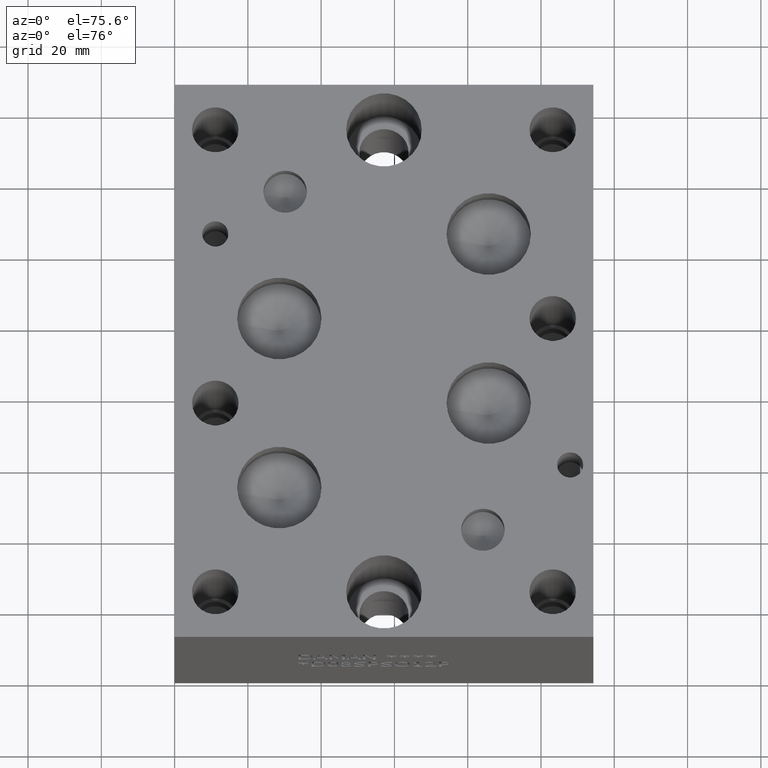
[diagram: clean part render]
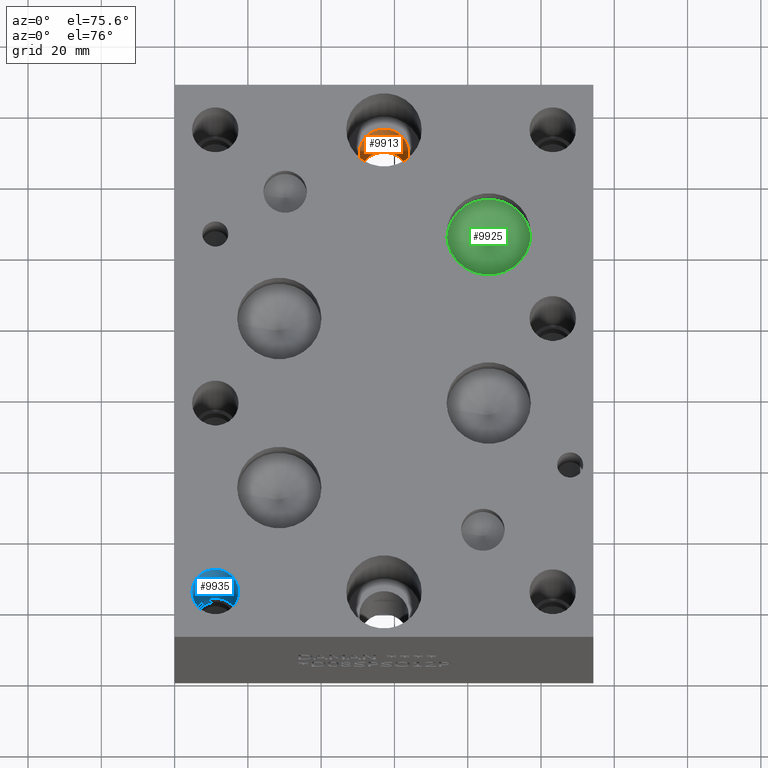
[diagram: same view with three faces highlighted in distinct colors, each labeled with its STEP entity id]
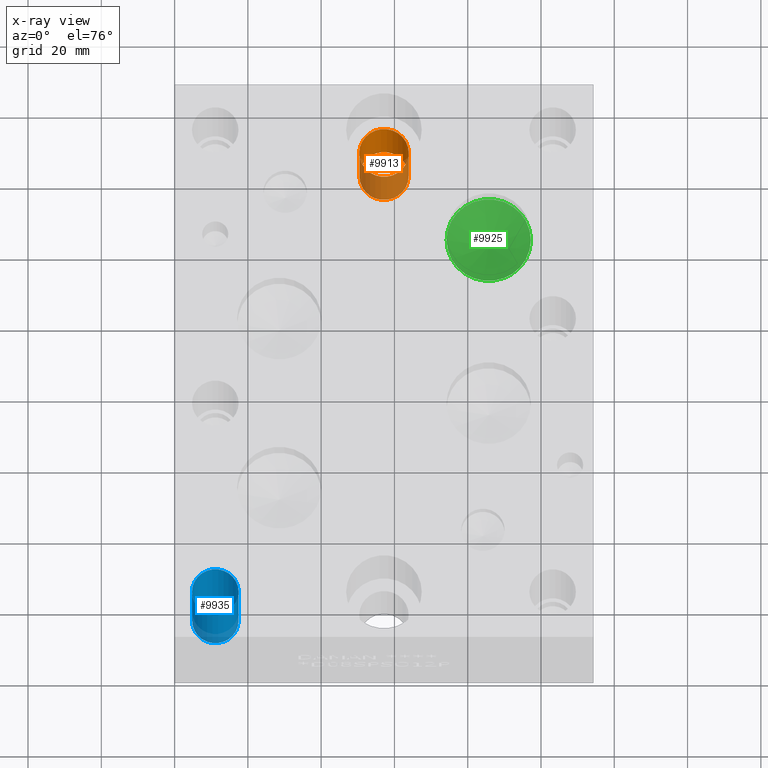
[diagram: x-ray of the same camera — body ghosted, the three highlighted faces saturated]
A machine part, auxiliary view with three faces highlighted in distinct colors.
The next image is the same camera in x-ray (body ghosted, the three faces saturated) — at least one of them is partly hidden behind the body in this view.
Their STEP definitions:

[orange] entity #9913 — the highlighted cylindrical surface (bore or boss wall) has radius 6.7437 mm, axis along (0, 0, 1).
#27=CYLINDRICAL_SURFACE('',#10337,6.7437);
#114=CIRCLE('',#10333,6.7437);
#117=CIRCLE('',#10338,6.7437);
#1161=FACE_OUTER_BOUND('',#1720,.T.);
#1720=EDGE_LOOP('',(#8469,#8470,#8471,#8472));
#2708=LINE('',#16809,#3660);
#3660=VECTOR('',#12105,6.7437);
#4537=VERTEX_POINT('',#16799);
#4540=VERTEX_POINT('',#16808);
#5877=EDGE_CURVE('',#4537,#4537,#114,.T.);
#5881=EDGE_CURVE('',#4537,#4540,#2708,.T.);
#5882=EDGE_CURVE('',#4540,#4540,#117,.T.);
#8469=ORIENTED_EDGE('',*,*,#5877,.T.);
#8470=ORIENTED_EDGE('',*,*,#5881,.T.);
#8471=ORIENTED_EDGE('',*,*,#5882,.F.);
#8472=ORIENTED_EDGE('',*,*,#5881,.F.);
#9913=ADVANCED_FACE('',(#1161),#27,.F.);
#10333=AXIS2_PLACEMENT_3D('',#16800,#12094,#12095);
#10337=AXIS2_PLACEMENT_3D('',#16807,#12103,#12104);
#10338=AXIS2_PLACEMENT_3D('',#16810,#12106,#12107);
#12094=DIRECTION('center_axis',(0.,0.,1.));
#12095=DIRECTION('ref_axis',(1.,0.,0.));
#12103=DIRECTION('center_axis',(0.,0.,1.));
#12104=DIRECTION('ref_axis',(1.,0.,0.));
#12105=DIRECTION('',(0.,0.,-1.));
#12106=DIRECTION('center_axis',(0.,0.,1.));
#12107=DIRECTION('ref_axis',(1.,0.,0.));
#16799=CARTESIAN_POINT('',(50.4063,142.875,25.4));
#16800=CARTESIAN_POINT('Origin',(57.15,142.875,25.4));
#16807=CARTESIAN_POINT('Origin',(57.15,142.875,-148.82141825215));
#16808=CARTESIAN_POINT('',(50.4063,142.875,0.));
#16809=CARTESIAN_POINT('',(50.4063,142.875,-148.82141825215));
#16810=CARTESIAN_POINT('Origin',(57.15,142.875,0.));

[blue] entity #9935 — the highlighted cylindrical surface (bore or boss wall) has radius 6.35 mm, axis along (0, 0, 1).
#38=CYLINDRICAL_SURFACE('',#10403,6.35);
#158=CIRCLE('',#10400,6.35);
#159=CIRCLE('',#10401,6.35);
#161=CIRCLE('',#10404,6.35);
#162=CIRCLE('',#10405,6.35);
#1183=FACE_OUTER_BOUND('',#1744,.T.);
#1744=EDGE_LOOP('',(#8573,#8574,#8575,#8576,#8577,#8578));
#2728=LINE('',#16951,#3680);
#3680=VECTOR('',#12261,6.35);
#4590=VERTEX_POINT('',#16940);
#4591=VERTEX_POINT('',#16941);
#4593=VERTEX_POINT('',#16947);
#4594=VERTEX_POINT('',#16948);
#5942=EDGE_CURVE('',#4590,#4591,#158,.T.);
#5943=EDGE_CURVE('',#4591,#4590,#159,.T.);
#5945=EDGE_CURVE('',#4593,#4594,#161,.T.);
#5946=EDGE_CURVE('',#4594,#4593,#162,.T.);
#5947=EDGE_CURVE('',#4594,#4591,#2728,.T.);
#8573=ORIENTED_EDGE('',*,*,#5945,.F.);
#8574=ORIENTED_EDGE('',*,*,#5946,.F.);
#8575=ORIENTED_EDGE('',*,*,#5947,.T.);
#8576=ORIENTED_EDGE('',*,*,#5942,.F.);
#8577=ORIENTED_EDGE('',*,*,#5943,.F.);
#8578=ORIENTED_EDGE('',*,*,#5947,.F.);
#9935=ADVANCED_FACE('',(#1183),#38,.F.);
#10400=AXIS2_PLACEMENT_3D('',#16942,#12249,#12250);
#10401=AXIS2_PLACEMENT_3D('',#16943,#12251,#12252);
#10403=AXIS2_PLACEMENT_3D('',#16946,#12255,#12256);
#10404=AXIS2_PLACEMENT_3D('',#16949,#12257,#12258);
#10405=AXIS2_PLACEMENT_3D('',#16950,#12259,#12260);
#12249=DIRECTION('center_axis',(0.,0.,1.));
#12250=DIRECTION('ref_axis',(1.,0.,0.));
#12251=DIRECTION('center_axis',(0.,0.,1.));
#12252=DIRECTION('ref_axis',(1.,0.,0.));
#12255=DIRECTION('center_axis',(0.,0.,1.));
#12256=DIRECTION('ref_axis',(1.,0.,0.));
#12257=DIRECTION('center_axis',(0.,0.,-1.));
#12258=DIRECTION('ref_axis',(1.,0.,0.));
#12259=DIRECTION('center_axis',(0.,0.,-1.));
#12260=DIRECTION('ref_axis',(1.,0.,0.));
#12261=DIRECTION('',(0.,0.,-1.));
#16940=CARTESIAN_POINT('',(17.4625,12.70762,19.05));
#16941=CARTESIAN_POINT('',(4.7625,12.70762,19.05));
#16942=CARTESIAN_POINT('Origin',(11.1125,12.70762,19.05));
#16943=CARTESIAN_POINT('Origin',(11.1125,12.70762,19.05));
#16946=CARTESIAN_POINT('Origin',(11.1125,12.70762,34.925));
#16947=CARTESIAN_POINT('',(17.4625,12.70762,50.8));
#16948=CARTESIAN_POINT('',(4.7625,12.70762,50.8));
#16949=CARTESIAN_POINT('Origin',(11.1125,12.70762,50.8));
#16950=CARTESIAN_POINT('Origin',(11.1125,12.70762,50.8));
#16951=CARTESIAN_POINT('',(4.7625,12.70762,34.925));

[green] entity #9925 — the highlighted conical surface has half-angle 60 deg.
#60=CONICAL_SURFACE('',#10372,5.7531,1.0471975511966);
#140=CIRCLE('',#10373,11.5062);
#141=CIRCLE('',#10374,11.5062);
#1173=FACE_OUTER_BOUND('',#1733,.T.);
#1733=EDGE_LOOP('',(#8526,#8527,#8528,#8529));
#2719=LINE('',#16885,#3671);
#3671=VECTOR('',#12188,5.7531);
#4567=VERTEX_POINT('',#16881);
#4568=VERTEX_POINT('',#16882);
#4569=VERTEX_POINT('',#16884);
#5915=EDGE_CURVE('',#4567,#4568,#140,.T.);
#5916=EDGE_CURVE('',#4568,#4569,#2719,.T.);
#5917=EDGE_CURVE('',#4568,#4567,#141,.T.);
#8526=ORIENTED_EDGE('',*,*,#5915,.T.);
#8527=ORIENTED_EDGE('',*,*,#5916,.T.);
#8528=ORIENTED_EDGE('',*,*,#5916,.F.);
#8529=ORIENTED_EDGE('',*,*,#5917,.T.);
#9925=ADVANCED_FACE('',(#1173),#60,.F.);
#10372=AXIS2_PLACEMENT_3D('',#16880,#12184,#12185);
#10373=AXIS2_PLACEMENT_3D('',#16883,#12186,#12187);
#10374=AXIS2_PLACEMENT_3D('',#16886,#12189,#12190);
#12184=DIRECTION('center_axis',(0.,0.,1.));
#12185=DIRECTION('ref_axis',(1.,0.,0.));
#12186=DIRECTION('center_axis',(0.,0.,1.));
#12187=DIRECTION('ref_axis',(1.,0.,0.));
#12188=DIRECTION('',(0.866025403784439,1.06057523872491E-16,-0.5));
#12189=DIRECTION('center_axis',(0.,0.,1.));
#12190=DIRECTION('ref_axis',(1.,0.,0.));
#16880=CARTESIAN_POINT('Origin',(85.725,113.5126,40.8353361663252));
#16881=CARTESIAN_POINT('',(97.2312,113.5126,44.15689));
#16882=CARTESIAN_POINT('',(74.2188,113.5126,44.15689));
#16883=CARTESIAN_POINT('Origin',(85.725,113.5126,44.15689));
#16884=CARTESIAN_POINT('',(85.725,113.5126,37.5137823326503));
#16885=CARTESIAN_POINT('',(79.9719,113.5126,40.8353361663252));
#16886=CARTESIAN_POINT('Origin',(85.725,113.5126,44.15689));